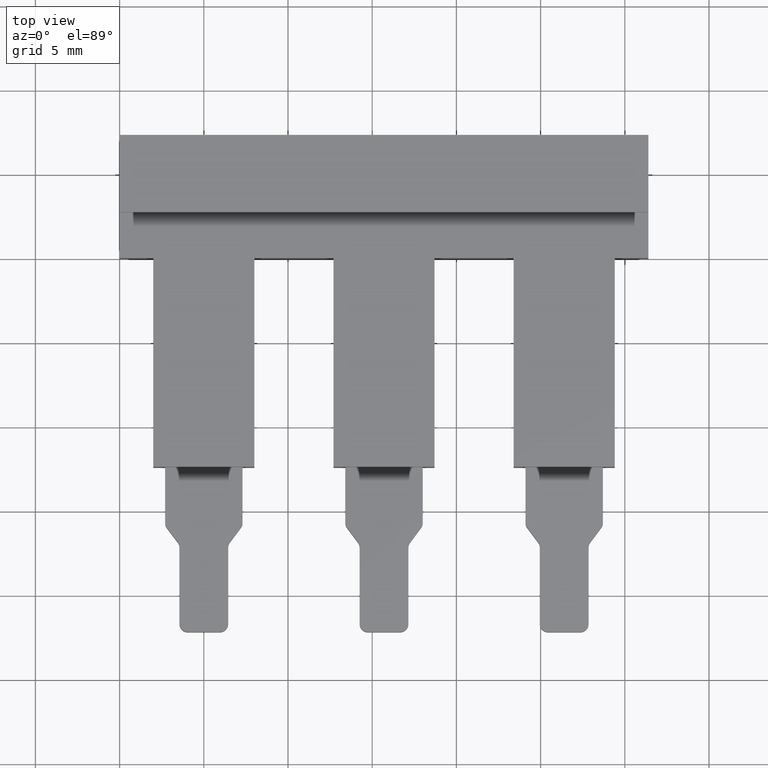
[diagram: clean part render]
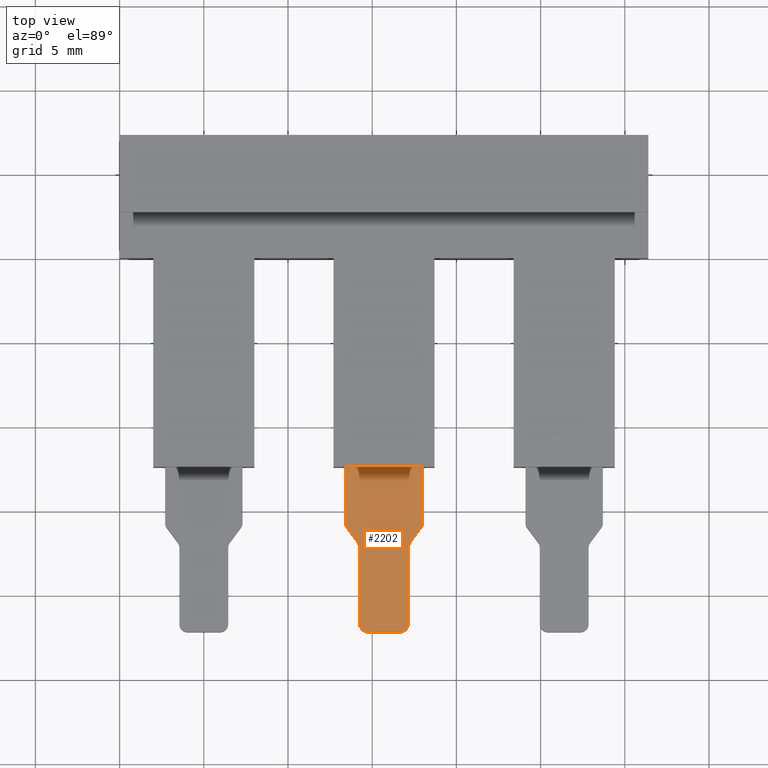
[diagram: same view with one face highlighted and labeled with its STEP entity id]
A machine part, top view. The second image highlights one B-rep face of the part: STEP entity #2202.
In plain terms, the highlighted planar face has unit normal (-0, 0, -1).
Its self-contained STEP definition (entity closure, byte-faithful):
#177 = EDGE_LOOP ( 'NONE', ( #689, #606, #690, #599, #592, #637, #657, #661, #614, #630, #696, #638, #680, #590 ) ) ;
#198 = VERTEX_POINT ( 'NONE', #659 ) ;
#204 = VERTEX_POINT ( 'NONE', #682 ) ;
#208 = VERTEX_POINT ( 'NONE', #649 ) ;
#212 = VERTEX_POINT ( 'NONE', #651 ) ;
#221 = VERTEX_POINT ( 'NONE', #737 ) ;
#241 = VERTEX_POINT ( 'NONE', #716 ) ;
#254 = VERTEX_POINT ( 'NONE', #714 ) ;
#263 = VERTEX_POINT ( 'NONE', #754 ) ;
#264 = VERTEX_POINT ( 'NONE', #723 ) ;
#266 = VERTEX_POINT ( 'NONE', #752 ) ;
#271 = VERTEX_POINT ( 'NONE', #747 ) ;
#272 = VERTEX_POINT ( 'NONE', #748 ) ;
#283 = VERTEX_POINT ( 'NONE', #755 ) ;
#287 = VERTEX_POINT ( 'NONE', #753 ) ;
#590 = ORIENTED_EDGE ( 'NONE', *, *, #2149, .F. ) ;
#592 = ORIENTED_EDGE ( 'NONE', *, *, #2185, .F. ) ;
#599 = ORIENTED_EDGE ( 'NONE', *, *, #2075, .T. ) ;
#606 = ORIENTED_EDGE ( 'NONE', *, *, #2100, .F. ) ;
#614 = ORIENTED_EDGE ( 'NONE', *, *, #2104, .F. ) ;
#630 = ORIENTED_EDGE ( 'NONE', *, *, #2101, .T. ) ;
#637 = ORIENTED_EDGE ( 'NONE', *, *, #2074, .F. ) ;
#638 = ORIENTED_EDGE ( 'NONE', *, *, #2079, .F. ) ;
#649 = CARTESIAN_POINT ( 'NONE',  ( 17.89999999999994500, -16.00000000000032000, 2.949999999999999300 ) ) ;
#651 = CARTESIAN_POINT ( 'NONE',  ( 18.00000000000000400, -15.70000000000024400, 2.949999999999999300 ) ) ;
#657 = ORIENTED_EDGE ( 'NONE', *, *, #2105, .F. ) ;
#659 = CARTESIAN_POINT ( 'NONE',  ( 13.50000000000005700, -16.00000000000018800, 2.949999999999999700 ) ) ;
#661 = ORIENTED_EDGE ( 'NONE', *, *, #2089, .F. ) ;
#680 = ORIENTED_EDGE ( 'NONE', *, *, #2134, .F. ) ;
#682 = CARTESIAN_POINT ( 'NONE',  ( 16.64999999999999900, -22.19999999999999600, 2.949999999999999300 ) ) ;
#689 = ORIENTED_EDGE ( 'NONE', *, *, #2158, .F. ) ;
#690 = ORIENTED_EDGE ( 'NONE', *, *, #2124, .T. ) ;
#696 = ORIENTED_EDGE ( 'NONE', *, *, #2073, .T. ) ;
#714 = CARTESIAN_POINT ( 'NONE',  ( 14.15000000000016200, -16.86666666666664200, 2.949999999999999700 ) ) ;
#716 = CARTESIAN_POINT ( 'NONE',  ( 17.14999999999966500, -17.16666666666701600, 2.949999999999999300 ) ) ;
#723 = CARTESIAN_POINT ( 'NONE',  ( 13.39999999999999900, -12.40000000000000200, 2.949999999999999700 ) ) ;
#737 = CARTESIAN_POINT ( 'NONE',  ( 17.24999999999972300, -16.86666666666692300, 2.949999999999999300 ) ) ;
#747 = CARTESIAN_POINT ( 'NONE',  ( 14.24999999999999800, -21.69999999999998900, 2.949999999999999700 ) ) ;
#748 = CARTESIAN_POINT ( 'NONE',  ( 14.75000000000007800, -22.19999999999999600, 2.949999999999999700 ) ) ;
#752 = CARTESIAN_POINT ( 'NONE',  ( 18.00000000000000400, -12.40000000000000200, 2.949999999999999300 ) ) ;
#753 = CARTESIAN_POINT ( 'NONE',  ( 13.39999999999999900, -15.70000000000010900, 2.949999999999999700 ) ) ;
#754 = CARTESIAN_POINT ( 'NONE',  ( 14.25000000000011000, -17.16666666666673200, 2.949999999999999700 ) ) ;
#755 = CARTESIAN_POINT ( 'NONE',  ( 17.14999999999983200, -21.69999999999998900, 2.949999999999999300 ) ) ;
#1036 = VECTOR ( 'NONE', #1391, 1000.000000000000100 ) ;
#1047 = CIRCLE ( 'NONE', #1058, 0.5000000000000282000 ) ;
#1049 = CIRCLE ( 'NONE', #1050, 0.5000000000000004400 ) ;
#1050 = AXIS2_PLACEMENT_3D ( 'NONE', #1403, #1393, #1410 ) ;
#1058 = AXIS2_PLACEMENT_3D ( 'NONE', #1406, #1412, #1417 ) ;
#1067 = AXIS2_PLACEMENT_3D ( 'NONE', #1416, #1426, #1424 ) ;
#1069 = AXIS2_PLACEMENT_3D ( 'NONE', #1474, #1439, #1436 ) ;
#1070 = CIRCLE ( 'NONE', #1086, 0.5000000000000004400 ) ;
#1071 = CIRCLE ( 'NONE', #1087, 0.5000000000000004400 ) ;
#1073 = VECTOR ( 'NONE', #1477, 1000.000000000000000 ) ;
#1075 = CIRCLE ( 'NONE', #1067, 0.5000000000000004400 ) ;
#1082 = VECTOR ( 'NONE', #1517, 1000.000000000000000 ) ;
#1086 = AXIS2_PLACEMENT_3D ( 'NONE', #1485, #1513, #1478 ) ;
#1087 = AXIS2_PLACEMENT_3D ( 'NONE', #1495, #1518, #1501 ) ;
#1093 = CIRCLE ( 'NONE', #1069, 0.5000000000000282000 ) ;
#1115 = VECTOR ( 'NONE', #1560, 1000.000000000000100 ) ;
#1139 = VECTOR ( 'NONE', #1604, 1000.000000000000000 ) ;
#1150 = VECTOR ( 'NONE', #1648, 1000.000000000000000 ) ;
#1156 = VECTOR ( 'NONE', #1677, 1000.000000000000000 ) ;
#1168 = VECTOR ( 'NONE', #1855, 1000.000000000000000 ) ;
#1182 = AXIS2_PLACEMENT_3D ( 'NONE', #1896, #1914, #1944 ) ;
#1390 = CARTESIAN_POINT ( 'NONE',  ( 17.89999999999999900, -16.00000000000024200, 2.949999999999999700 ) ) ;
#1391 = DIRECTION ( 'NONE',  ( 0.6000000000001560800, 0.7999999999998829200, -0.0000000000000000000 ) ) ;
#1393 = DIRECTION ( 'NONE',  ( -0.0000000000000000000, -0.0000000000000000000, -1.000000000000000000 ) ) ;
#1402 = LINE ( 'NONE', #1390, #1036 ) ;
#1403 = CARTESIAN_POINT ( 'NONE',  ( 13.75000000000022000, -17.16666666666671800, 2.949999999999999700 ) ) ;
#1406 = CARTESIAN_POINT ( 'NONE',  ( 14.75000000000007800, -21.69999999999998900, 2.949999999999999700 ) ) ;
#1410 = DIRECTION ( 'NONE',  ( 1.000000000000000000, 0.0000000000000000000, 0.0000000000000000000 ) ) ;
#1412 = DIRECTION ( 'NONE',  ( 0.0000000000000000000, 0.0000000000000000000, -1.000000000000000000 ) ) ;
#1416 = CARTESIAN_POINT ( 'NONE',  ( 17.49999999999999600, -15.70000000000024400, 2.949999999999999300 ) ) ;
#1417 = DIRECTION ( 'NONE',  ( -1.000000000000000000, 0.0000000000000000000, 0.0000000000000000000 ) ) ;
#1424 = DIRECTION ( 'NONE',  ( 1.000000000000000000, 0.0000000000000000000, 0.0000000000000000000 ) ) ;
#1426 = DIRECTION ( 'NONE',  ( -0.0000000000000000000, -0.0000000000000000000, -1.000000000000000000 ) ) ;
#1436 = DIRECTION ( 'NONE',  ( 0.0000000000000000000, -1.000000000000000000, 0.0000000000000000000 ) ) ;
#1439 = DIRECTION ( 'NONE',  ( -0.0000000000000000000, 1.665334536937734800E-016, -1.000000000000000000 ) ) ;
#1474 = CARTESIAN_POINT ( 'NONE',  ( 16.64999999999999900, -21.69999999999998900, 2.949999999999999300 ) ) ;
#1477 = DIRECTION ( 'NONE',  ( -1.000000000000000000, 0.0000000000000000000, 9.427844978134822700E-017 ) ) ;
#1478 = DIRECTION ( 'NONE',  ( -1.000000000000000000, 0.0000000000000000000, 0.0000000000000000000 ) ) ;
#1480 = CARTESIAN_POINT ( 'NONE',  ( 17.14999999999966500, -2.699999999999992200, 2.949999999999999300 ) ) ;
#1482 = LINE ( 'NONE', #1490, #1073 ) ;
#1485 = CARTESIAN_POINT ( 'NONE',  ( 13.89999999999999900, -15.70000000000010900, 2.949999999999999700 ) ) ;
#1490 = CARTESIAN_POINT ( 'NONE',  ( 13.39999999999999900, -22.19999999999999600, 2.949999999999999700 ) ) ;
#1495 = CARTESIAN_POINT ( 'NONE',  ( 17.64999999999966500, -17.16666666666699800, 2.949999999999999300 ) ) ;
#1501 = DIRECTION ( 'NONE',  ( -1.000000000000000000, 0.0000000000000000000, 0.0000000000000000000 ) ) ;
#1509 = LINE ( 'NONE', #1480, #1082 ) ;
#1513 = DIRECTION ( 'NONE',  ( 0.0000000000000000000, 0.0000000000000000000, -1.000000000000000000 ) ) ;
#1517 = DIRECTION ( 'NONE',  ( -0.0000000000000000000, -1.000000000000000000, -0.0000000000000000000 ) ) ;
#1518 = DIRECTION ( 'NONE',  ( 0.0000000000000000000, 0.0000000000000000000, -1.000000000000000000 ) ) ;
#1528 = LINE ( 'NONE', #1529, #1115 ) ;
#1529 = CARTESIAN_POINT ( 'NONE',  ( 13.50000000000010100, -16.00000000000024200, 2.949999999999999700 ) ) ;
#1560 = DIRECTION ( 'NONE',  ( 0.6000000000001560800, -0.7999999999998829200, -0.0000000000000000000 ) ) ;
#1566 = CARTESIAN_POINT ( 'NONE',  ( 18.00000000000000400, -2.699999999999992200, 2.949999999999999300 ) ) ;
#1601 = LINE ( 'NONE', #1566, #1139 ) ;
#1604 = DIRECTION ( 'NONE',  ( -0.0000000000000000000, -1.000000000000000000, -0.0000000000000000000 ) ) ;
#1646 = LINE ( 'NONE', #1647, #1150 ) ;
#1647 = CARTESIAN_POINT ( 'NONE',  ( -1.329309590057499600, -12.40000000000000200, 2.950000000000001100 ) ) ;
#1648 = DIRECTION ( 'NONE',  ( 1.000000000000000000, 0.0000000000000000000, -9.427844978134822700E-017 ) ) ;
#1677 = DIRECTION ( 'NONE',  ( 0.0000000000000000000, 1.000000000000000000, 0.0000000000000000000 ) ) ;
#1681 = LINE ( 'NONE', #1700, #1156 ) ;
#1700 = CARTESIAN_POINT ( 'NONE',  ( 13.39999999999999900, -2.699999999999992200, 2.949999999999999700 ) ) ;
#1822 = CARTESIAN_POINT ( 'NONE',  ( 14.24999999999999800, -2.699999999999992200, 2.949999999999999700 ) ) ;
#1836 = LINE ( 'NONE', #1822, #1168 ) ;
#1855 = DIRECTION ( 'NONE',  ( 0.0000000000000000000, 1.000000000000000000, 0.0000000000000000000 ) ) ;
#1894 = FACE_OUTER_BOUND ( 'NONE', #177, .T. ) ;
#1895 = PLANE ( 'NONE',  #1182 ) ;
#1896 = CARTESIAN_POINT ( 'NONE',  ( 13.39999999999999900, -2.699999999999992200, 2.949999999999999700 ) ) ;
#1914 = DIRECTION ( 'NONE',  ( -9.427844978134822700E-017, 0.0000000000000000000, -1.000000000000000000 ) ) ;
#1944 = DIRECTION ( 'NONE',  ( -1.000000000000000000, 0.0000000000000000000, 9.427844978134822700E-017 ) ) ;
#2073 = EDGE_CURVE ( 'NONE', #221, #208, #1402, .T. ) ;
#2074 = EDGE_CURVE ( 'NONE', #272, #271, #1047, .T. ) ;
#2075 = EDGE_CURVE ( 'NONE', #254, #263, #1049, .T. ) ;
#2079 = EDGE_CURVE ( 'NONE', #212, #208, #1075, .T. ) ;
#2089 = EDGE_CURVE ( 'NONE', #283, #204, #1093, .T. ) ;
#2100 = EDGE_CURVE ( 'NONE', #198, #287, #1070, .T. ) ;
#2101 = EDGE_CURVE ( 'NONE', #241, #221, #1071, .T. ) ;
#2104 = EDGE_CURVE ( 'NONE', #241, #283, #1509, .T. ) ;
#2105 = EDGE_CURVE ( 'NONE', #204, #272, #1482, .T. ) ;
#2124 = EDGE_CURVE ( 'NONE', #198, #254, #1528, .T. ) ;
#2134 = EDGE_CURVE ( 'NONE', #266, #212, #1601, .T. ) ;
#2149 = EDGE_CURVE ( 'NONE', #264, #266, #1646, .T. ) ;
#2158 = EDGE_CURVE ( 'NONE', #287, #264, #1681, .T. ) ;
#2185 = EDGE_CURVE ( 'NONE', #271, #263, #1836, .T. ) ;
#2202 = ADVANCED_FACE ( 'NONE', ( #1894 ), #1895, .F. ) ;